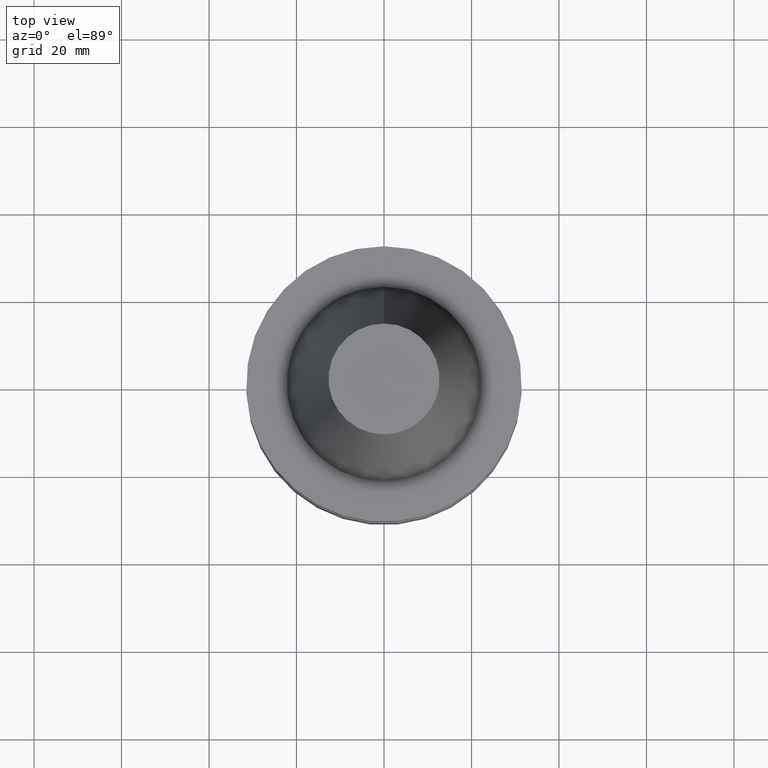
[diagram: clean part render]
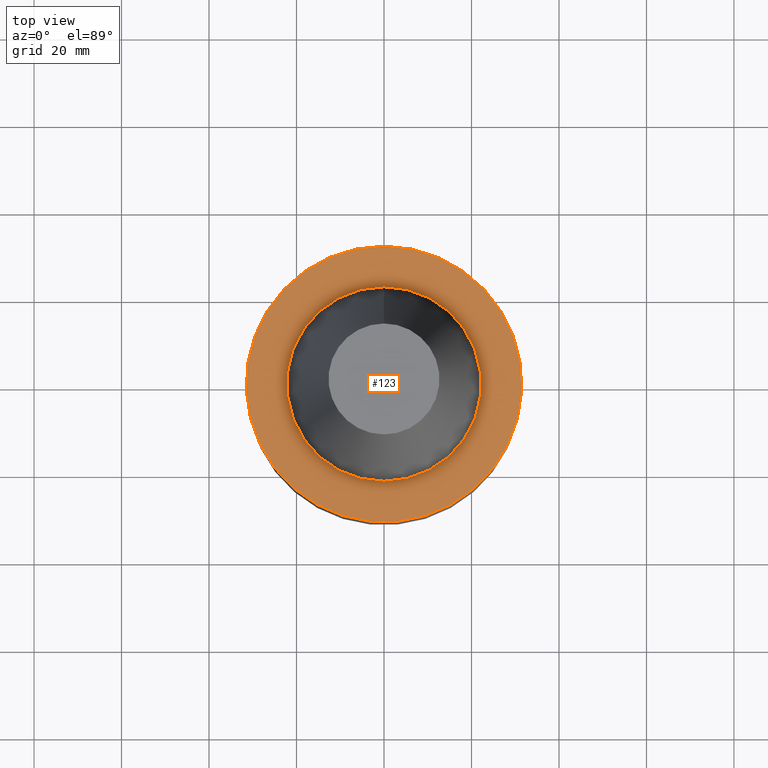
[diagram: same view with one face highlighted and labeled with its STEP entity id]
A machine part, top view. The second image highlights one B-rep face of the part: STEP entity #123.
In plain terms, the highlighted planar face has unit normal (-0, -0, 1).
Its self-contained STEP definition (entity closure, byte-faithful):
#87=EDGE_CURVE('Unnamed[1]',#197,#197,#198,.T.);
#89=EDGE_CURVE('Unnamed[1]',#200,#200,#201,.T.);
#123=ADVANCED_FACE('Unnamed[1]',(#252,#253),#254,.T.);
#197=VERTEX_POINT('',#333);
#198=CIRCLE('',#334,22.225);
#200=VERTEX_POINT('',#337);
#201=CIRCLE('',#338,31.4999999999997);
#252=FACE_OUTER_BOUND('',#403,.T.);
#253=FACE_BOUND('',#404,.T.);
#254=PLANE('',#405);
#333=CARTESIAN_POINT('',(6.12323399573622E-017,22.2250000000001,-0.999999999999912));
#334=AXIS2_PLACEMENT_3D('',#474,#475,#476);
#337=CARTESIAN_POINT('',(6.12323399573568E-017,31.4999999999997,-0.999999999999825));
#338=AXIS2_PLACEMENT_3D('',#477,#478,#479);
#403=EDGE_LOOP('',(#534));
#404=EDGE_LOOP('',(#535));
#405=AXIS2_PLACEMENT_3D('',#536,#537,#538);
#474=CARTESIAN_POINT('',(6.12323399573616E-017,3.2486534636755E-014,-0.999999999999901));
#475=DIRECTION('',(6.12323399573676E-017,-6.62934875621754E-016,-1.0));
#476=DIRECTION('',(3.57659009428984E-032,1.0,-6.62934875621754E-016));
#477=CARTESIAN_POINT('',(6.12323399573555E-017,3.2486534636755E-014,-0.999999999999801));
#478=DIRECTION('',(6.12323399573677E-017,-6.62934875621773E-016,-1.0));
#479=DIRECTION('',(3.57659009428972E-032,1.0,-6.62934875621773E-016));
#534=ORIENTED_EDGE('',*,*,#89,.F.);
#535=ORIENTED_EDGE('',*,*,#87,.T.);
#536=CARTESIAN_POINT('',(6.12323399573595E-017,26.8624999999999,-0.999999999999869));
#537=DIRECTION('',(-6.12323399573677E-017,-9.35138060429241E-015,1.0));
#538=DIRECTION('',(5.77434068963536E-031,-1.0,-9.35138060429241E-015));